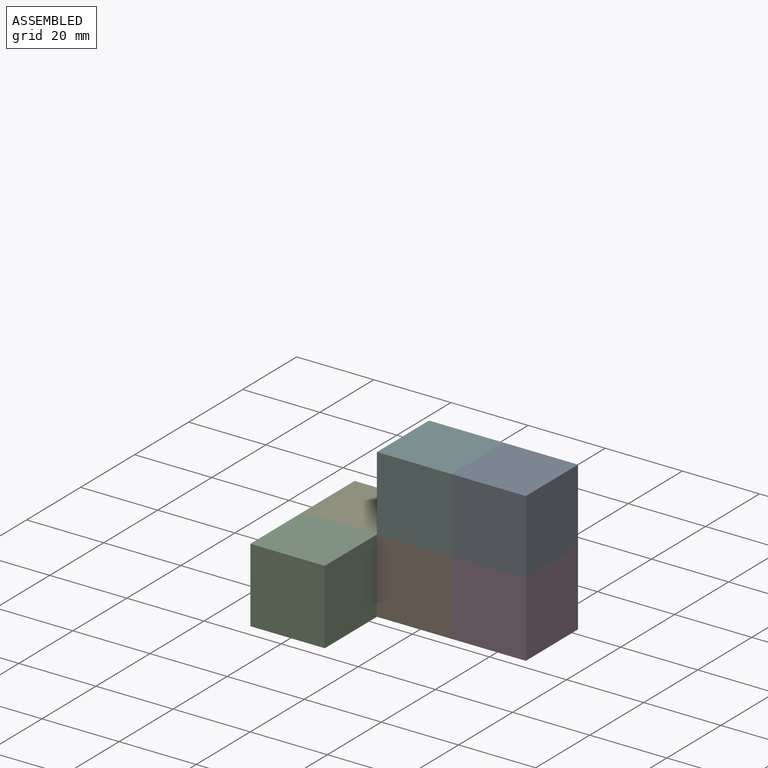
[diagram: assembled view]
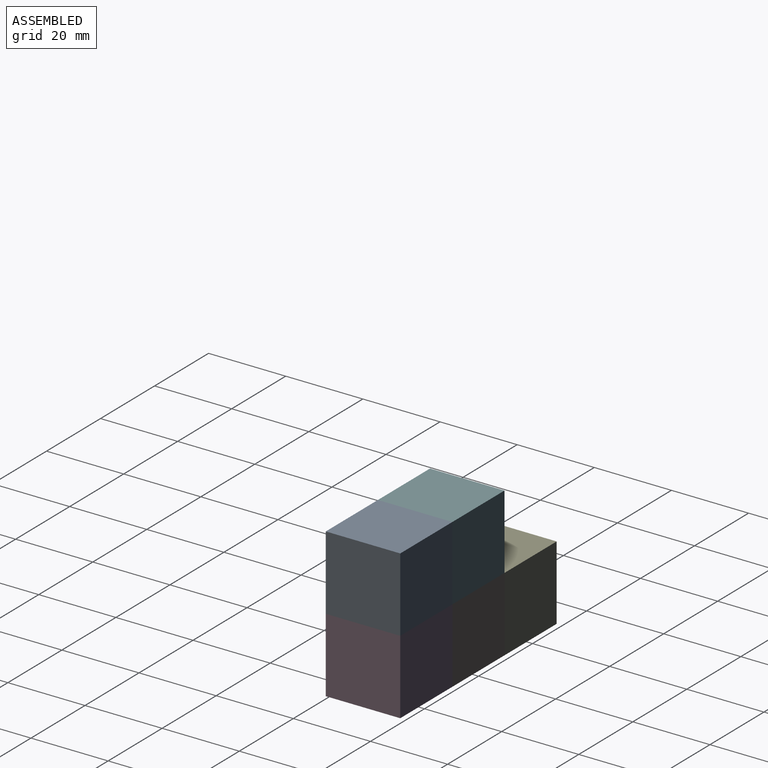
[diagram: assembled view, second angle]
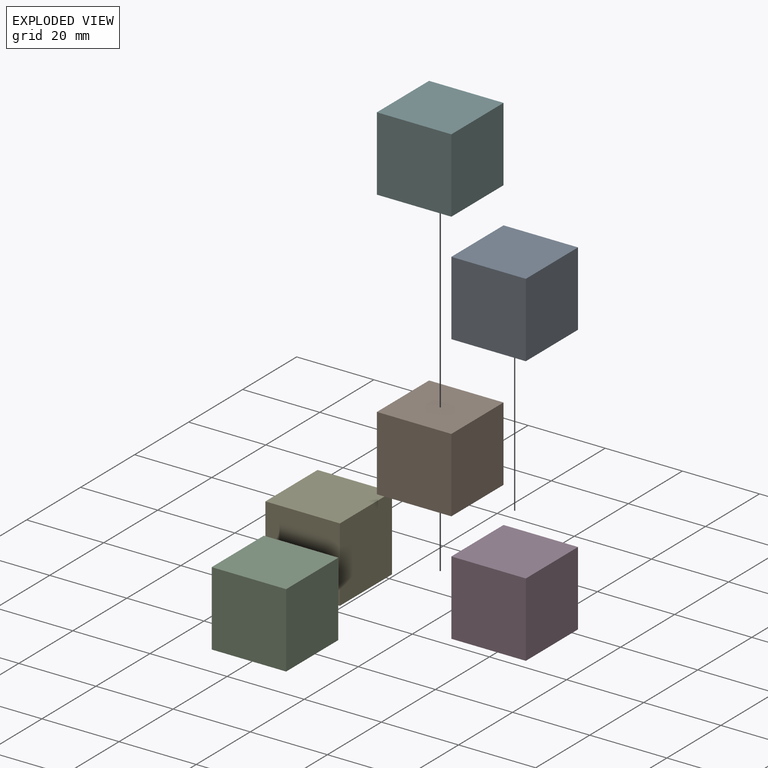
[diagram: exploded view]
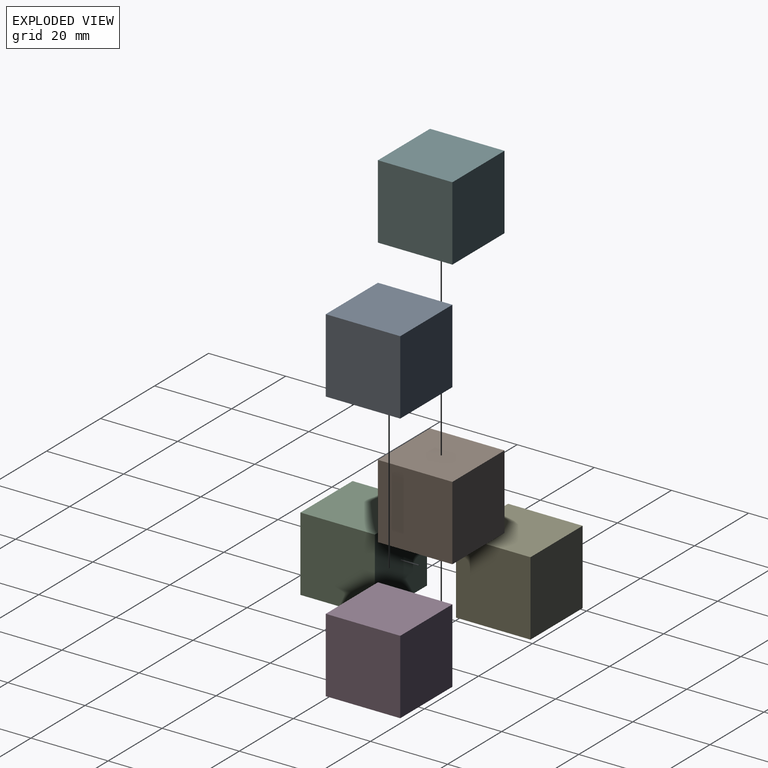
[diagram: exploded view, second angle]
ASSEMBLY  parts=6 mates=5
PART A: 6 faces, bbox 19.3x19.3x19.3 mm
  f0: plane 19.3x19.3mm, normal (0,0,1), area 372.6mm2, adj f1,f3,f4,f5
  f1: plane 19.3x19.3mm, normal (-1,0,0), area 372.6mm2, adj f0,f2,f4,f5
  f2: plane 19.3x19.3mm, normal (0,0,-1), area 372.6mm2, adj f1,f3,f4,f5
  f3: plane 19.3x19.3mm, normal (1,0,0), area 372.6mm2, adj f0,f2,f4,f5
  f4: plane 19.3x19.3mm, normal (0,-1,0), area 372.6mm2, adj f0,f1,f2,f3
  f5: plane 19.3x19.3mm, normal (0,1,0), area 372.6mm2, adj f0,f1,f2,f3
PART B: same geometry as A
PART C: same geometry as A
PART D: same geometry as A
PART E: same geometry as A
PART F: same geometry as A
PLACE A t=(19.3,0,0)mm
PLACE B t=(0,0,-19.3)mm
PLACE C t=(-19.3,-19.3,-19.3)mm
PLACE D t=(19.3,0,-19.3)mm
PLACE E t=(-19.3,0,-19.3)mm
PLACE F at identity
MATE fastened B.f0 <-> F.f2  axis (0,0,1) through (0,-9.65,-9.65)mm
MATE fastened E.f3 <-> B.f1  axis (1,0,0) through (-9.65,-9.65,-19.3)mm
MATE fastened E.f4 <-> C.f5  axis (0,-1,0) through (-19.3,-19.3,-19.3)mm
MATE fastened A.f2 <-> D.f0  axis (0,0,-1) through (19.3,-9.65,-9.65)mm
MATE fastened B.f3 <-> D.f1  axis (1,0,0) through (9.65,-9.65,-19.3)mm
